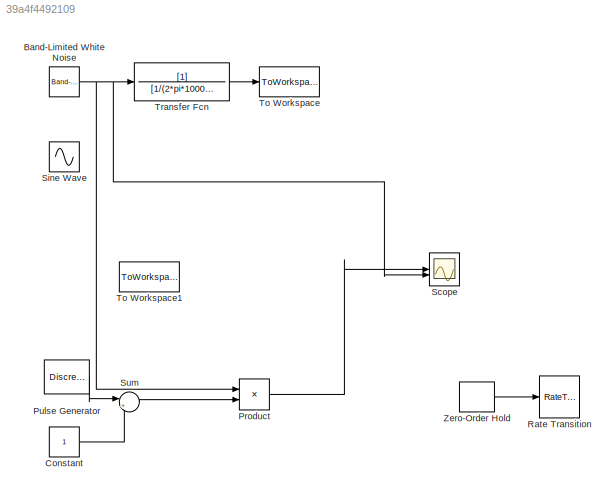
MODEL mdl_39a4f4492109
KIND model
CONFIG AbsTol = auto
CONFIG EnableMultiTasking = on
CONFIG FixedStep = auto
CONFIG MaxStep = auto
CONFIG MinStep = auto
CONFIG RelTol = 1e-3
CONFIG SampleTimeConstraint = Unconstrained
CONFIG SolverName = ode45
CONFIG StartTime = 0.0
CONFIG StopTime = t_sim
BLOCK [Reference] Band-Limited White Noise  REF=simulink/Sources/Band-Limited
White Noise
  SourceBlock = simulink/Sources/Band-Limited\nWhite Noise
  SourceType = Band-Limited White Noise.
BLOCK [Constant] Constant
BLOCK [Product] Product
  RndMeth = Zero
  SampleTime = 0
BLOCK [DiscretePulseGenerator] Pulse Generator
  Amplitude = 2
  Period = 1/20
  PulseType = Time based
  PulseWidth = 50
BLOCK [RateTransition] Rate Transition
BLOCK [Scope] Scope
  Floating = off
  NumInputPorts = 2
  ScopeSpecificationString = Simulink.scopes.TimeScopeBlockCfg('CurrentConfiguration', extmgr.ConfigurationSet(extmgr.Configuration('Core','General UI',true),extmgr.Configuration('Core','Source UI',true),extmgr.Configuration('Sources','WiredSimulink',true,'DataLoggingSaveFormat','StructureWithTime','DataLoggingDecimation','1','DataLoggingDecimateData',true),extmgr.Configuration('Visuals','Time Domain',true,'SerializedDisplays...<+2595ch>
BLOCK [Sin] Sine Wave
  Amplitude = 1e-6
  Frequency = 2*pi*10
  SampleTime = 0
BLOCK [Sum] Sum
  Inputs = |+-
BLOCK [ToWorkspace] To Workspace
  MaxDataPoints = inf
  SampleTime = ts
  VariableName = simout
BLOCK [ToWorkspace] To Workspace1
  MaxDataPoints = inf
  SampleTime = ts
  VariableName = simout1
BLOCK [TransferFcn] Transfer Fcn
  Denominator = [1/(2*pi*10000) 1]
BLOCK [ZeroOrderHold] Zero-Order Hold
  SampleTime = 1/200
NET Band-Limited White Noise:1 -> Product:1, Scope:2, Transfer Fcn:1
LINE Constant:1 -> Sum:2
LINE Product:1 -> Scope:1
LINE Pulse Generator:1 -> Sum:1
LINE Sum:1 -> Product:2
LINE Transfer Fcn:1 -> To Workspace:1
LINE Zero-Order Hold:1 -> Rate Transition:1
note: NET lines group one-source signal fan-out (src -> all destinations, sorted); 1:1 wires keep LINE
